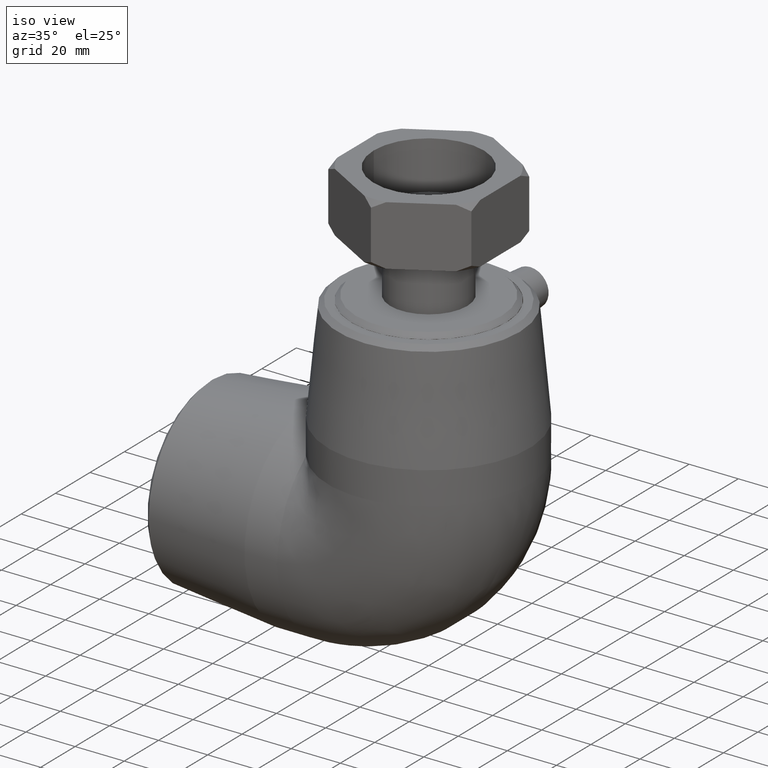
[diagram: clean part render]
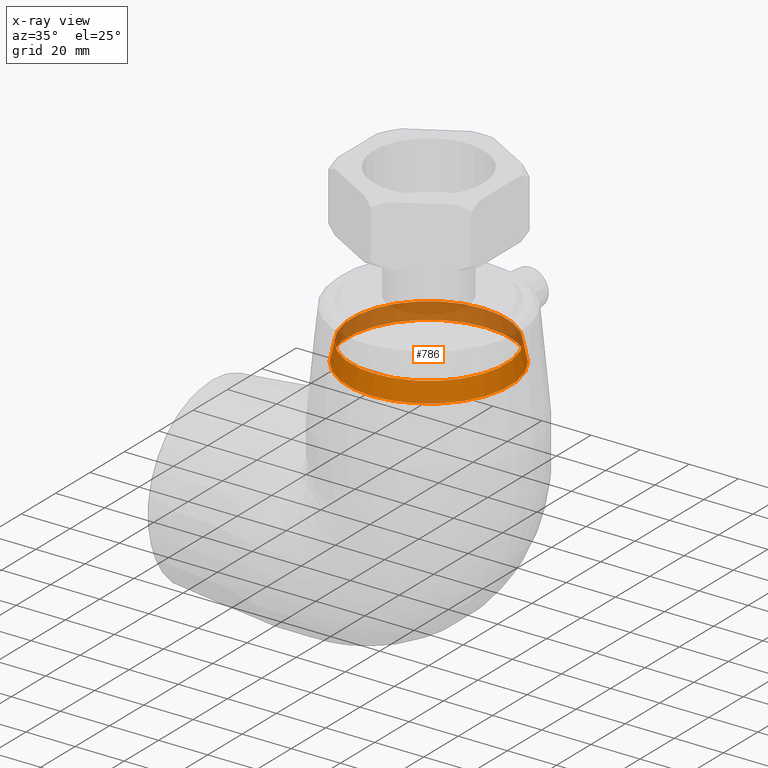
[diagram: x-ray — body ghosted, one internal face saturated and labeled with its STEP entity id]
A machine part, iso view, then the same camera in x-ray: the body is ghosted and one INTERNAL B-rep face — a face not visible from any outside direction — is saturated and labeled: STEP entity #786.
In plain terms, the highlighted conical surface has half-angle 12 deg.
Its self-contained STEP definition (entity closure, byte-faithful):
#119=FACE_BOUND('',#227,.T.);
#163=FACE_OUTER_BOUND('',#226,.T.);
#226=EDGE_LOOP('',(#566));
#227=EDGE_LOOP('',(#567));
#333=CIRCLE('',#854,31.5);
#334=CIRCLE('',#855,33.1154298686922);
#387=VERTEX_POINT('',#1226);
#388=VERTEX_POINT('',#1228);
#467=EDGE_CURVE('',#387,#387,#333,.T.);
#468=EDGE_CURVE('',#388,#388,#334,.T.);
#566=ORIENTED_EDGE('',*,*,#467,.F.);
#567=ORIENTED_EDGE('',*,*,#468,.T.);
#764=CONICAL_SURFACE('',#853,32.3077149343461,12.);
#786=ADVANCED_FACE('',(#163,#119),#764,.F.);
#853=AXIS2_PLACEMENT_3D('',#1225,#972,#973);
#854=AXIS2_PLACEMENT_3D('',#1227,#974,#975);
#855=AXIS2_PLACEMENT_3D('',#1229,#976,#977);
#972=DIRECTION('center_axis',(6.12323399573677E-17,-1.5419764230905E-18,
-1.));
#973=DIRECTION('ref_axis',(0.,1.,0.));
#974=DIRECTION('center_axis',(6.12323399573677E-17,-1.5419764230905E-18,
-1.));
#975=DIRECTION('ref_axis',(-1.,0.,-6.12323399573677E-17));
#976=DIRECTION('center_axis',(6.12323399573677E-17,-1.5419764230905E-18,
-1.));
#977=DIRECTION('ref_axis',(-1.,0.,-6.12323399573677E-17));
#1225=CARTESIAN_POINT('Origin',(-4.3474961369731E-15,-2.92975520387194E-17,
71.));
#1226=CARTESIAN_POINT('',(-4.5801790288111E-15,31.5,74.8));
#1227=CARTESIAN_POINT('Origin',(-4.5801790288111E-15,-2.34380416309755E-17,
74.8));
#1228=CARTESIAN_POINT('',(-4.11481324513511E-15,33.1154298686922,67.2));
#1229=CARTESIAN_POINT('Origin',(-4.11481324513511E-15,-3.51570624464633E-17,
67.2));